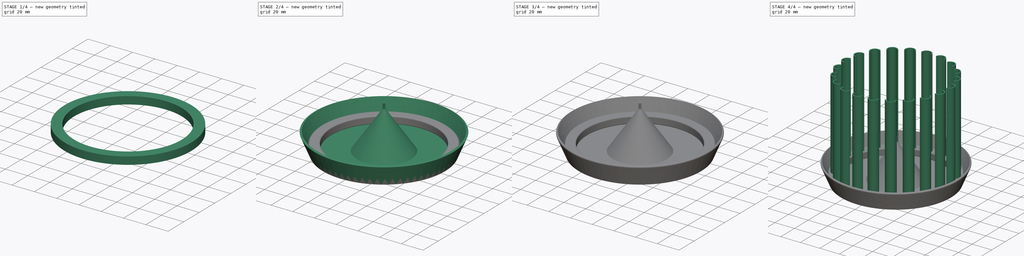
[diagram: build sequence overview — one tinted view per stage of 4, left to right]
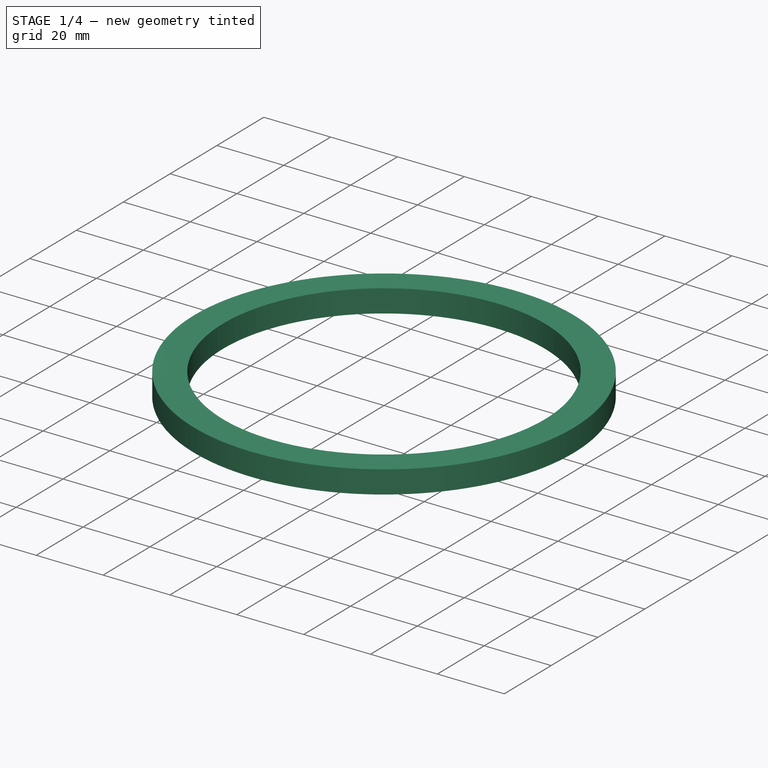
[diagram: stage 1 of 4 — iso view after this stage's code; geometry added in this stage tinted green]
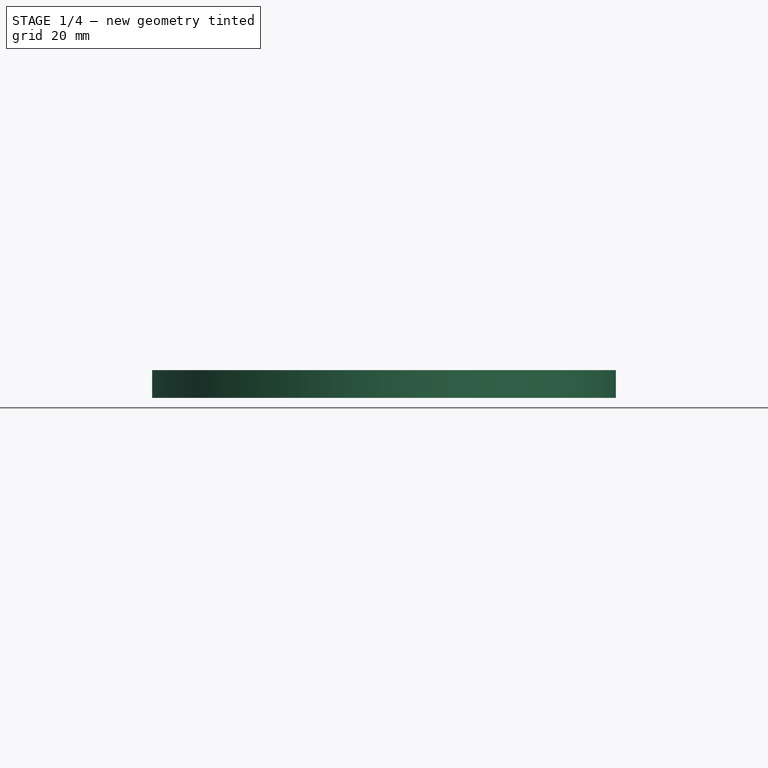
[diagram: stage 1 of 4 — front view after this stage's code; geometry added in this stage tinted green]
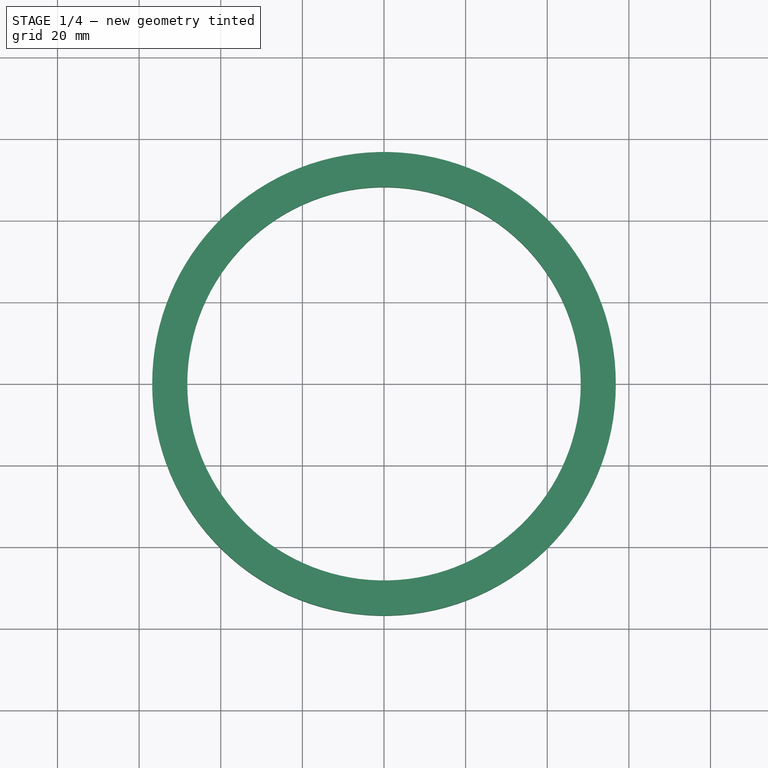
[diagram: stage 1 of 4 — top view after this stage's code; geometry added in this stage tinted green]
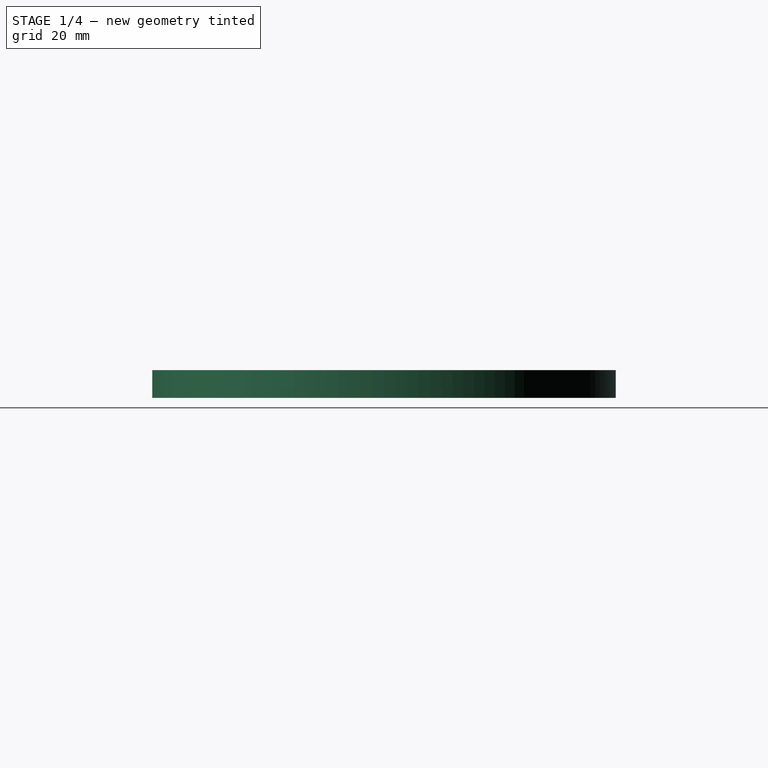
[diagram: stage 1 of 4 — right view after this stage's code; geometry added in this stage tinted green]
FCSTD DOCUMENT  (FreeCAD 0.18R16110 (Git))
Label: orchidplanter_FC018
License: All rights reserved
LicenseURL: http://en.wikipedia.org/wiki/All_rights_reserved
objects: Sketcher::SketchObject×7, PartDesign::Pad×5, PartDesign::Body×4, PartDesign::PolarPattern×4, PartDesign::Fillet×2, Spreadsheet::Sheet×1, PartDesign::Revolution×1, PartDesign::Pocket×1
note: 31 computed .brp shape members not serialized (recipe doc carries the construction recipe); baked Part::Feature solids carry a one-line shape summary decoded from their .brp

FEATURE [PartDesign::Body] Body002  label="bottom"
  Group = -> [Sketch002,Revolution,Sketch003,Pad002,Sketch004,Pad003,PolarPattern001,PolarPattern002,Fillet]
  Origin = -> Origin002
  Tip = -> Fillet
FEATURE [Sketcher::SketchObject] Sketch005
  MapMode = 5
  Support = -> [XY_Plane003]
  expr: Constraints[3] = Parameters.Diameter / 2 - 5 - Parameters.Thickness
  expr: Constraints[1] = Parameters.Diameter / 2 + Parameters.Thickness
  sketch-geometry (2):
    g0: Circle CenterX=0 CenterY=0 CenterZ=0 NormalX=0 NormalY=0 NormalZ=1 AngleXU=0 Radius=56.8
    g1: Circle CenterX=0 CenterY=0 CenterZ=0 NormalX=0 NormalY=0 NormalZ=1 AngleXU=0 Radius=48.2
  constraints (4):
    c: Coincident(g-1,g0)
    c: Radius(g0) = 56.8
    c: Coincident(g1,g0)
    c: Radius(g1) = 48.2
FEATURE [PartDesign::Pad] Pad004
  Length = 6.8
  Length2 = 100
  Profile = -> Sketch005
  Type = 0
  expr: Length = 5 + Parameters.Thickness
FEATURE [Sketcher::SketchObject] Sketch006
  MapMode = 5
  Placement = pos=(0,0,0) rot=(1,0,0;3.14159rad)
  Support = -> [Pad004]
  expr: Constraints[16] = Parameters.Diameter / 2 - 5
  sketch-geometry (5):
    g0: ArcOfCircle CenterX=-50 CenterY=0 CenterZ=0 NormalX=0 NormalY=0 NormalZ=1 AngleXU=0 Radius=5.05 StartAngle=1.5708 EndAngle=4.71239
    g1: ArcOfCircle CenterX=-50 CenterY=0 CenterZ=0 NormalX=0 NormalY=0 NormalZ=1 AngleXU=0 Radius=3.95 StartAngle=1.5708 EndAngle=4.71239
    g2: LineSegment [constr] StartX=-50 StartY=-5.05 StartZ=0 EndX=-50 EndY=5.05 EndZ=0
    g3: ArcOfCircle CenterX=-50 CenterY=4.5 CenterZ=0 NormalX=0 NormalY=0 NormalZ=1 AngleXU=0 Radius=0.55 StartAngle=4.71239 EndAngle=7.85398
    g4: ArcOfCircle CenterX=-50 CenterY=-4.5 CenterZ=0 NormalX=0 NormalY=0 NormalZ=1 AngleXU=0 Radius=0.55 StartAngle=4.71239 EndAngle=7.85398
  constraints (17):
    c: Coincident(g2,g0)
    c: Coincident(g2,g0)
    c: PointOnObject(g0,g2)
    c: Vertical(g2)
    c: Coincident(g1,g0)
    c: PointOnObject(g1,g2)
    c: PointOnObject(g1,g2)
    c: Coincident(g3,g0)
    c: Coincident(g3,g1)
    c: PointOnObject(g3,g2)
    c: Coincident(g4,g1)
    c: Coincident(g4,g0)
    c: PointOnObject(g4,g2)
    c: Radius(g1) = 3.95
    c: Radius(g0) = 5.05
    c: PointOnObject(g0,g-1)
    c: DistanceX(g0,g-1) = 50
FEATURE [PartDesign::Pocket] Pocket
  BaseFeature = -> Pad004
  Length = 5
  Length2 = 100
  Profile = -> Sketch006
  Type = 0
FEATURE [PartDesign::PolarPattern] PolarPattern003
  Angle = 360
  Axis = -> Sketch006 [N_Axis]
  BaseFeature = -> Pocket
  Occurrences = 21
  Originals = -> [Pocket]
  expr: Occurrences = Parameters.BarCount
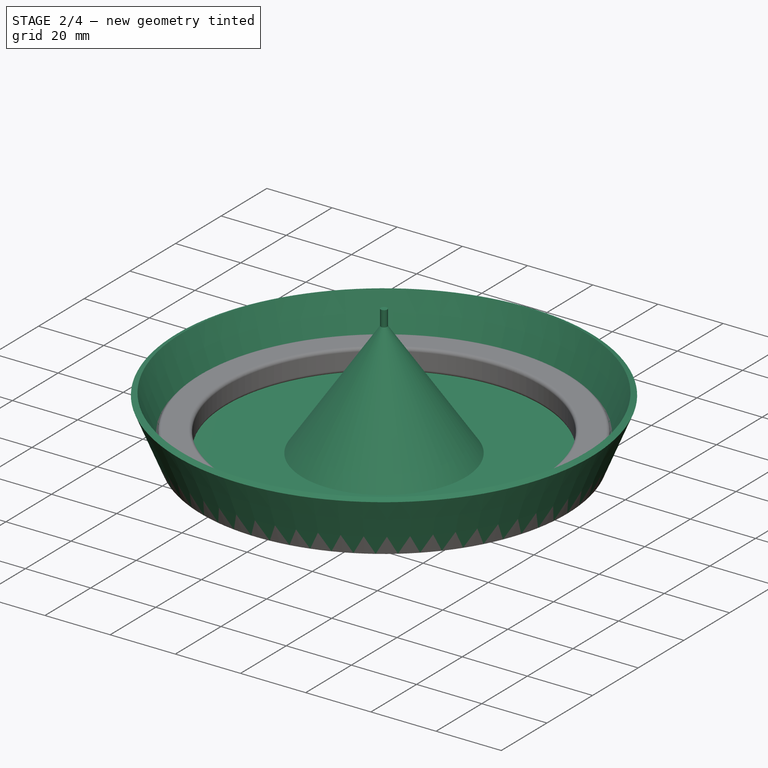
[diagram: stage 2 of 4 — iso view after this stage's code; geometry added in this stage tinted green]
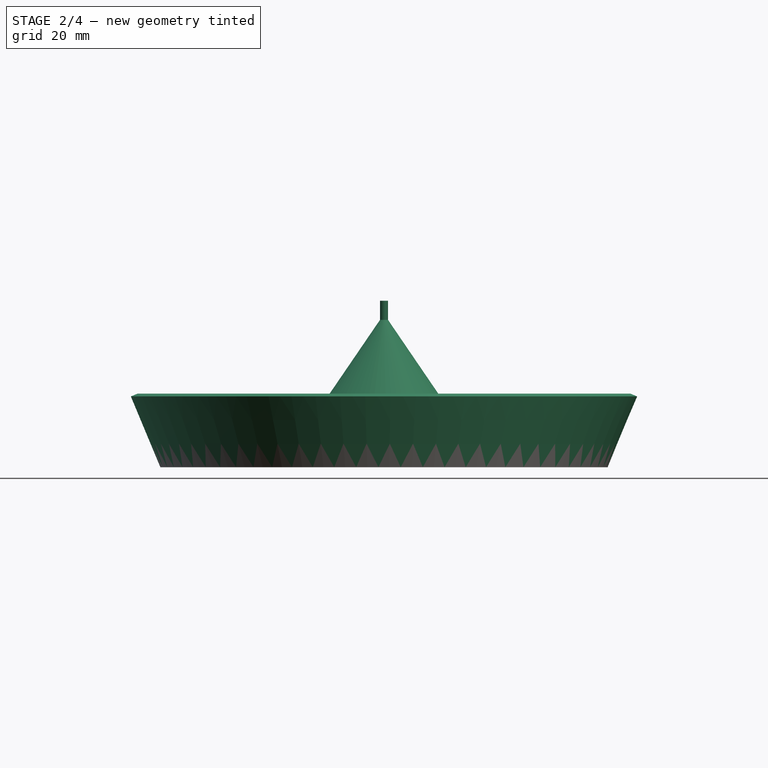
[diagram: stage 2 of 4 — front view after this stage's code; geometry added in this stage tinted green]
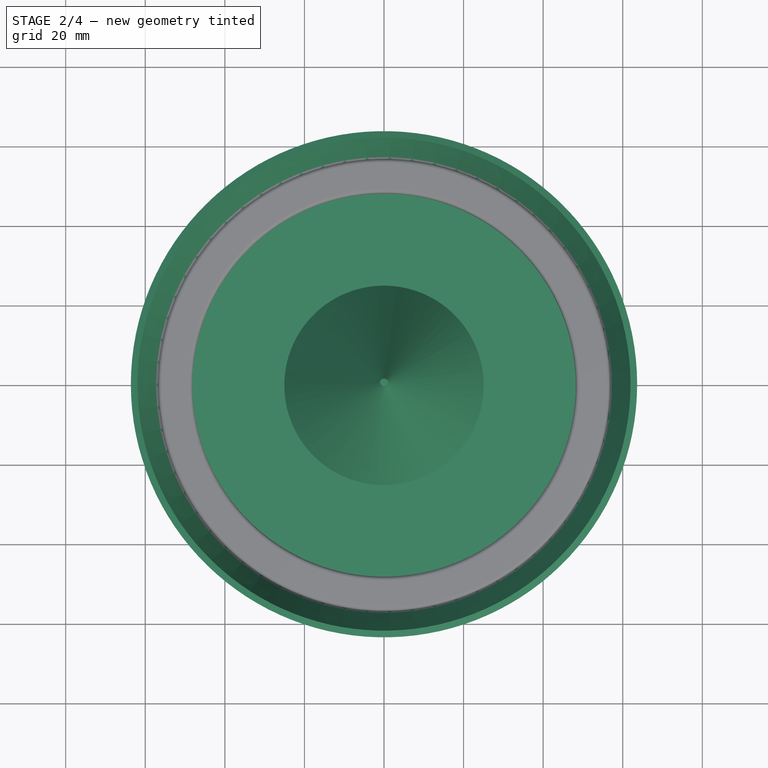
[diagram: stage 2 of 4 — top view after this stage's code; geometry added in this stage tinted green]
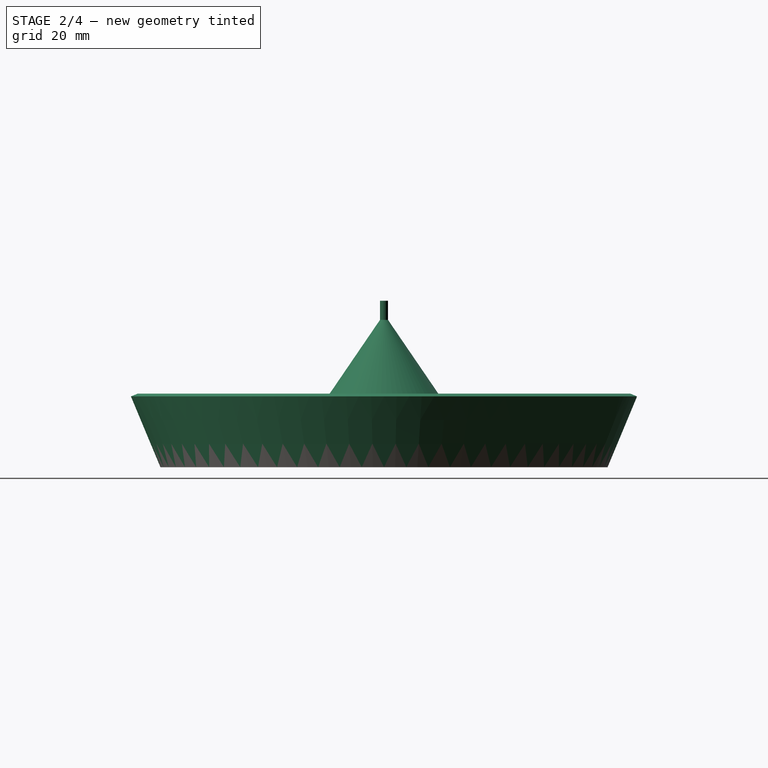
[diagram: stage 2 of 4 — right view after this stage's code; geometry added in this stage tinted green]
FEATURE [PartDesign::Body] Body001  label="breathwall"
  Group = -> [Sketch,Pad,Sketch001,Pad001,PolarPattern]
  Origin = -> Origin001
  Tip = -> PolarPattern
FEATURE [Sketcher::SketchObject] Sketch002
  MapMode = 5
  Placement = pos=(0,0,0) rot=(1,0,0;1.5708rad)
  Support = -> [XZ_Plane002]
  expr: Constraints.Thickness = Parameters.Thickness
  expr: Constraints[15] = Parameters.Thickness
  expr: Constraints[16] = Parameters.Thickness
  expr: Constraints[8] = Parameters.Diameter / 2
  sketch-geometry (10):
    g0: LineSegment StartX=-61.9594 StartY=16.6927 StartZ=0 EndX=-55 EndY=0 EndZ=0
    g1: LineSegment StartX=-55 StartY=0 StartZ=0 EndX=-25.055 EndY=0 EndZ=0
    g2: LineSegment StartX=-25.055 StartY=0 StartZ=0 EndX=-1 EndY=35.2533 EndZ=0
    g3: LineSegment StartX=0 StartY=33.5253 StartZ=0 EndX=-24.1041 EndY=-1.8 EndZ=0
    g4: LineSegment StartX=-24.1041 StartY=-1.8 StartZ=0 EndX=-56.1997 EndY=-1.8 EndZ=0
    g5: LineSegment StartX=-56.1997 StartY=-1.8 StartZ=0 EndX=-63.6208 EndY=16 EndZ=0
    g6: LineSegment StartX=-63.6208 StartY=16 StartZ=0 EndX=-61.9594 EndY=16.6927 EndZ=0
    g7: LineSegment StartX=-1 StartY=40.0472 StartZ=0 EndX=-1 EndY=35.2533 EndZ=0
    g8: LineSegment StartX=-1 StartY=40.0472 StartZ=0 EndX=0 EndY=40.0472 EndZ=0
    g9: LineSegment StartX=0 StartY=40.0472 StartZ=0 EndX=0 EndY=33.5253 EndZ=0
  constraints (26):
    c: PointOnObject(g0,g-1)
    c: Coincident(g1,g0)
    c: Horizontal(g1)
    c: Coincident(g2,g1)
    c: PointOnObject(g3,g-2)
    c: Horizontal(g4)
    c: Coincident(g6,g5)
    c: Coincident(g6,g0)
    c: DistanceX(g0,g-1) = 55
    c: Parallel(g0,g5)
    c: Parallel(g3,g2)
    c: Perpendicular(g5,g6)
    c: Distance(g6) = 1.8  'Thickness'
    c: Coincident(g4,g5)
    c: Coincident(g3,g4)
    c: DistanceY(g4,g0) = 1.8
    c: Distance(g3,g2) = 1.8
    c: Vertical(g7)
    c: Coincident(g8,g7)
    c: Horizontal(g8)
    c: Vertical(g9)
    c: Coincident(g7,g2)
    c: DistanceX(g8,g8) = 1
    c: Coincident(g9,g3)
    c: Coincident(g9,g8)
    c: DistanceY(g-1,g5) = 16
FEATURE [PartDesign::Revolution] Revolution
  Angle = 360
  Axis = (0,-2e-16,1)
  Base = (0,0,0)
  Placement = pos=(0,0,0) rot=(1,0,0;1.5708rad)
  Profile = -> Sketch002
  ReferenceAxis = -> Sketch002 [V_Axis]
FEATURE [Sketcher::SketchObject] Sketch003
  ExternalGeometry = -> [Revolution]
  MapMode = 5
  Placement = pos=(0,0,0) rot=(0,0,1;3.14159rad)
  Support = -> [Revolution]
  expr: Constraints[10] = Parameters.Diameter / 2
  expr: Constraints[0] = Parameters.Diameter / 2 + Parameters.Thickness
  sketch-geometry (4):
    g0: ArcOfCircle CenterX=0 CenterY=0 CenterZ=0 NormalX=0 NormalY=0 NormalZ=1 AngleXU=0 Radius=55 StartAngle=3.09612 EndAngle=3.18706
    g1: ArcOfCircle CenterX=0 CenterY=0 CenterZ=0 NormalX=0 NormalY=0 NormalZ=1 AngleXU=0 Radius=56.8 StartAngle=3.09612 EndAngle=3.18706
    g2: LineSegment StartX=-54.9432 StartY=2.5 StartZ=0 EndX=-56.7413 EndY=2.58182 EndZ=0
    g3: LineSegment StartX=-54.9432 StartY=-2.5 StartZ=0 EndX=-56.7413 EndY=-2.58182 EndZ=0
  constraints (11):
    c: Radius(g1) = 56.8
    c: Perpendicular(g1,g2)
    c: Coincident(g0,g-1)
    c: DistanceY(g0,g0) = 5
    c: Symmetric(g0,g0,g-1)
    c: Perpendicular(g3,g1) = 1.5708
    c: Coincident(g2,g1)
    c: Coincident(g0,g2)
    c: Coincident(g0,g3)
    c: Coincident(g1,g0)
    c: Radius(g0) = 55
FEATURE [PartDesign::Pad] Pad002
  BaseFeature = -> Revolution
  Length = 2.8
  Length2 = 100
  Placement = pos=(0,0,0) rot=(1,0,0;1.5708rad)
  Profile = -> Sketch003
  Type = 0
  expr: Length = Parameters.Thickness + 1
FEATURE [PartDesign::Fillet] Fillet001
  Base = -> PolarPattern003 [Face1,Face8]
  BaseFeature = -> PolarPattern003
  Radius = 1
FEATURE [PartDesign::Body] Body003  label="holder"
  Group = -> [Sketch005,Pad004,Sketch006,Pocket,PolarPattern003,Fillet001]
  Origin = -> Origin003
  Placement = pos=(0,0,91) rot=(0,0,1;0rad)
  Tip = -> Fillet001
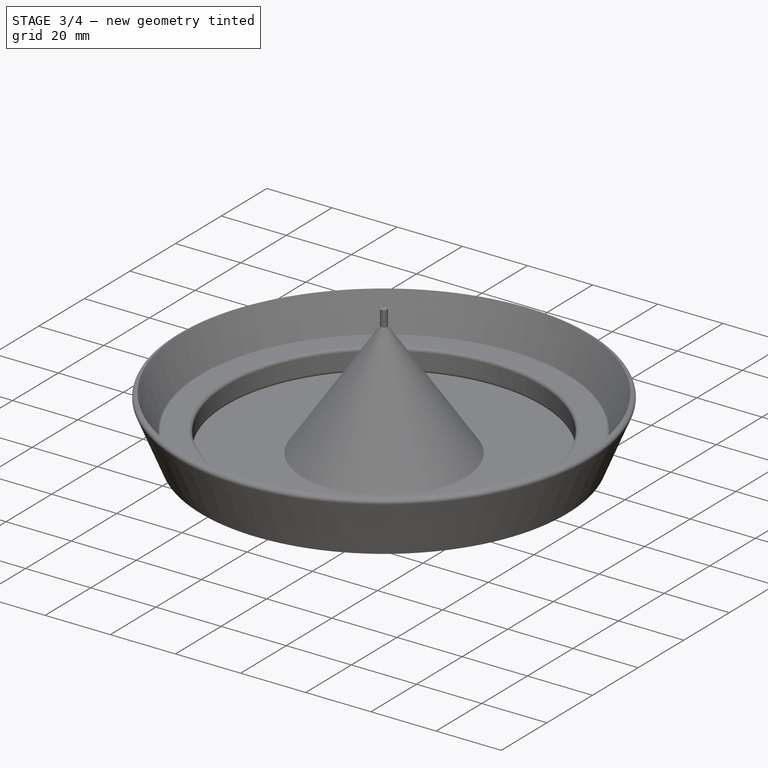
[diagram: stage 3 of 4 — iso view after this stage's code; geometry added in this stage tinted green]
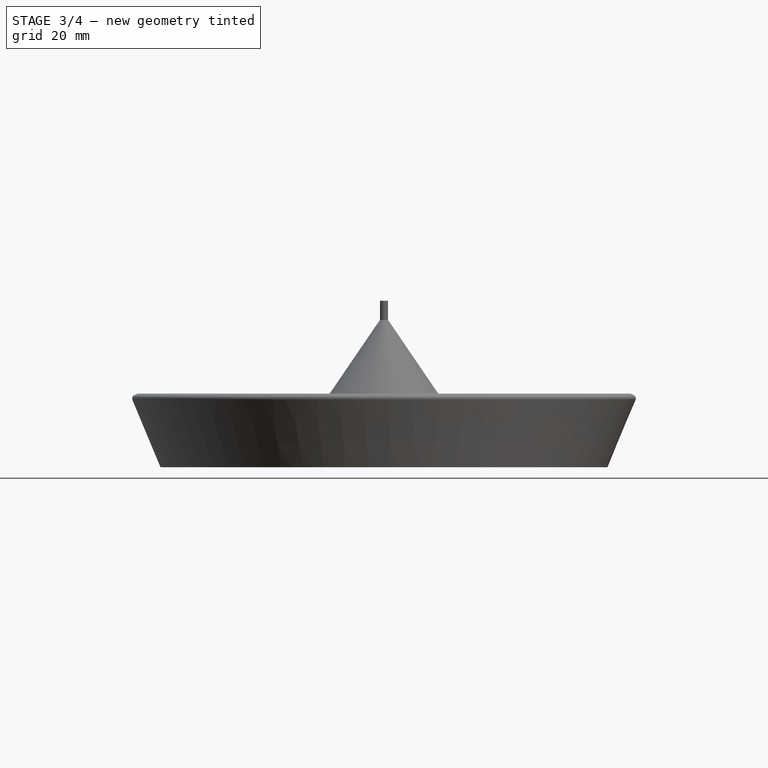
[diagram: stage 3 of 4 — front view after this stage's code; geometry added in this stage tinted green]
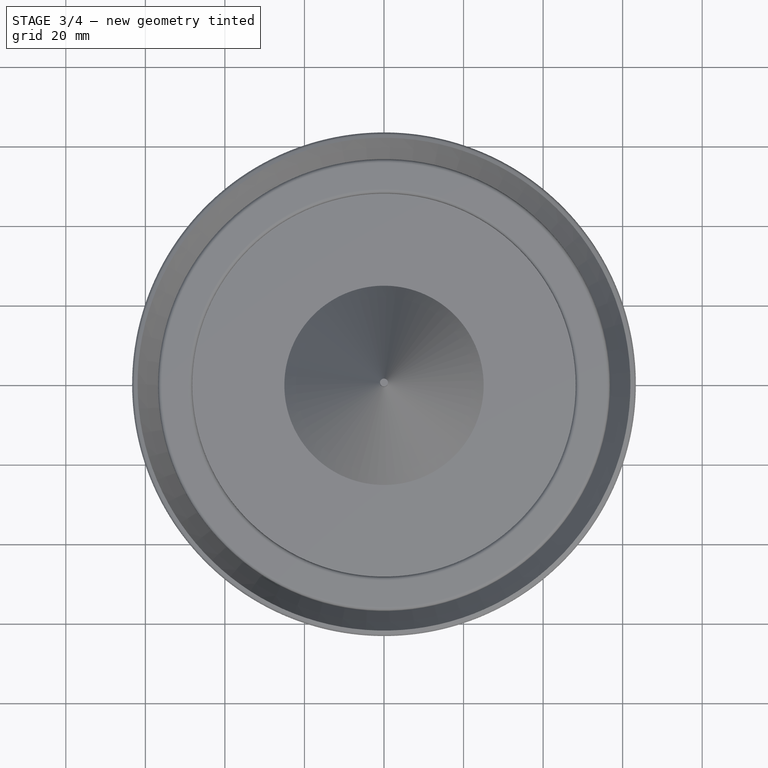
[diagram: stage 3 of 4 — top view after this stage's code; geometry added in this stage tinted green]
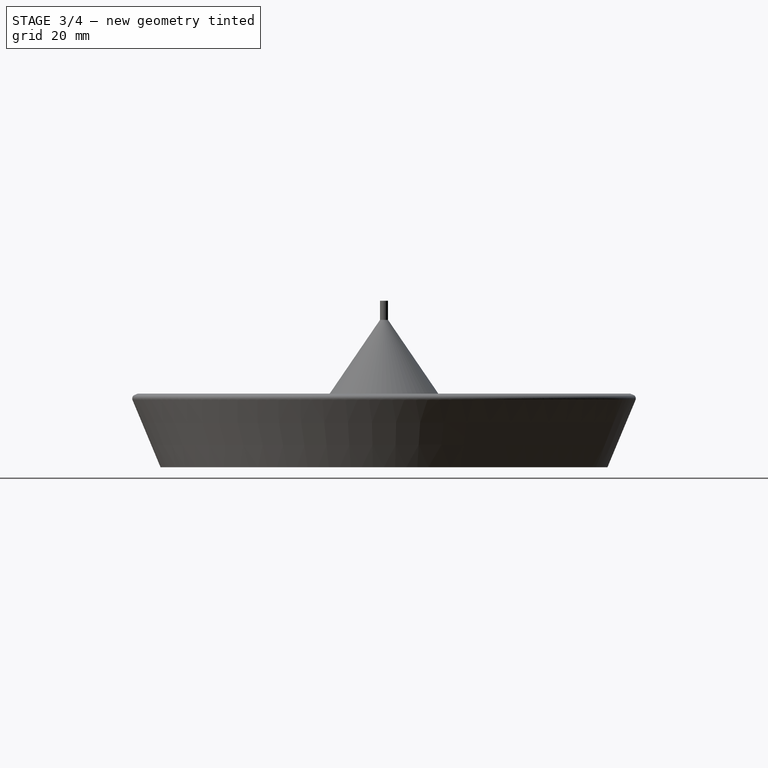
[diagram: stage 3 of 4 — right view after this stage's code; geometry added in this stage tinted green]
FEATURE [Sketcher::SketchObject] Sketch004
  MapMode = 5
  Placement = pos=(0,-6e-16,2.8) rot=(0,0,1;3.14159rad)
  Support = -> [Pad002]
  expr: Constraints[1] = Parameters.Diameter / 2 + Parameters.Thickness
  sketch-geometry (4):
    g0: ArcOfCircle CenterX=0 CenterY=0 CenterZ=0 NormalX=0 NormalY=0 NormalZ=1 AngleXU=0 Radius=56.8 StartAngle=3.09756 EndAngle=3.18562
    g1: LineSegment StartX=-56.745 StartY=2.5 StartZ=0 EndX=-52.245 EndY=2.5 EndZ=0
    g2: LineSegment StartX=-52.245 StartY=2.5 StartZ=0 EndX=-52.245 EndY=-2.5 EndZ=0
    g3: LineSegment StartX=-52.245 StartY=-2.5 StartZ=0 EndX=-56.745 EndY=-2.5 EndZ=0
  constraints (12):
    c: Coincident(g0,g-1)
    c: Radius(g0) = 56.8
    c: Coincident(g1,g0)
    c: Horizontal(g1)
    c: Vertical(g2)
    c: Coincident(g3,g2)
    c: Coincident(g3,g0)
    c: Horizontal(g3)
    c: Symmetric(g0,g0,g-1)
    c: Coincident(g2,g1)
    c: Distance(g0,g0) = 5
    c: DistanceX(g1,g1) = 4.5
FEATURE [PartDesign::Pad] Pad003
  BaseFeature = -> Pad002
  Length = 1.8
  Length2 = 100
  Placement = pos=(0,0,0) rot=(1,0,0;1.5708rad)
  Profile = -> Sketch004
  Type = 0
  expr: Length = Parameters.Thickness
FEATURE [PartDesign::PolarPattern] PolarPattern001
  Angle = 360
  Axis = -> Z_Axis002
  BaseFeature = -> Pad003
  Occurrences = 3
  Originals = -> [Pad002]
  Placement = pos=(0,0,0) rot=(1,0,0;1.5708rad)
FEATURE [PartDesign::PolarPattern] PolarPattern002
  Angle = 360
  Axis = -> Z_Axis002
  BaseFeature = -> PolarPattern001
  Occurrences = 3
  Originals = -> [Pad003]
  Placement = pos=(0,0,0) rot=(1,0,0;1.5708rad)
FEATURE [PartDesign::Fillet] Fillet
  Base = -> PolarPattern002 [Edge45]
  BaseFeature = -> PolarPattern002
  Placement = pos=(0,0,0) rot=(1,0,0;1.5708rad)
  Radius = 1
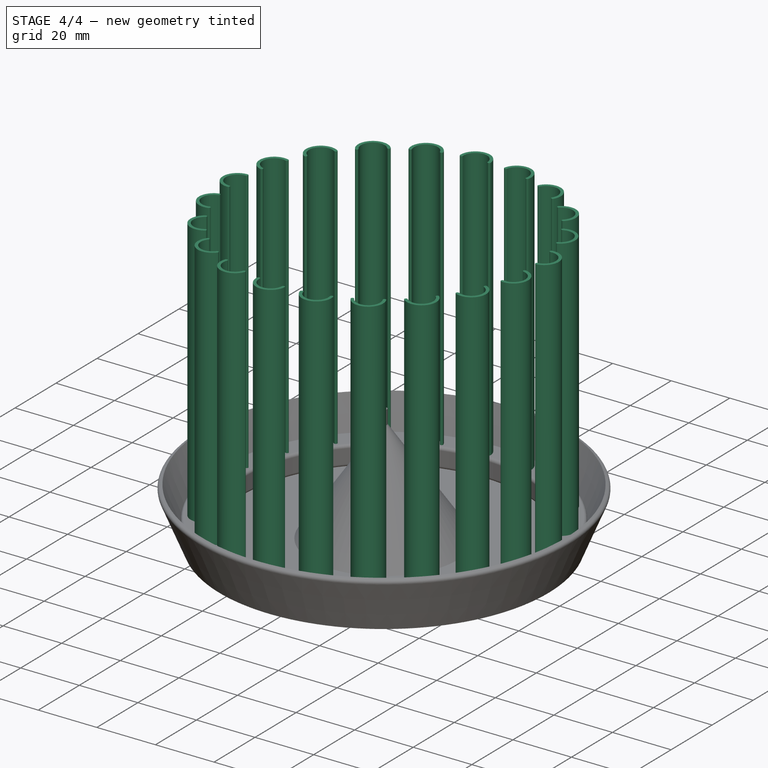
[diagram: stage 4 of 4 — iso view after this stage's code; geometry added in this stage tinted green]
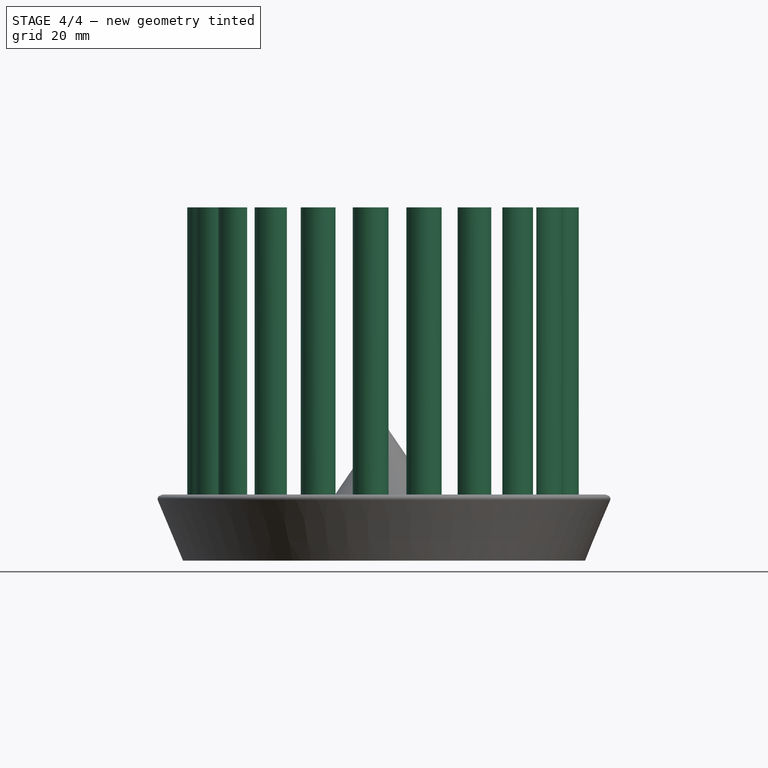
[diagram: stage 4 of 4 — front view after this stage's code; geometry added in this stage tinted green]
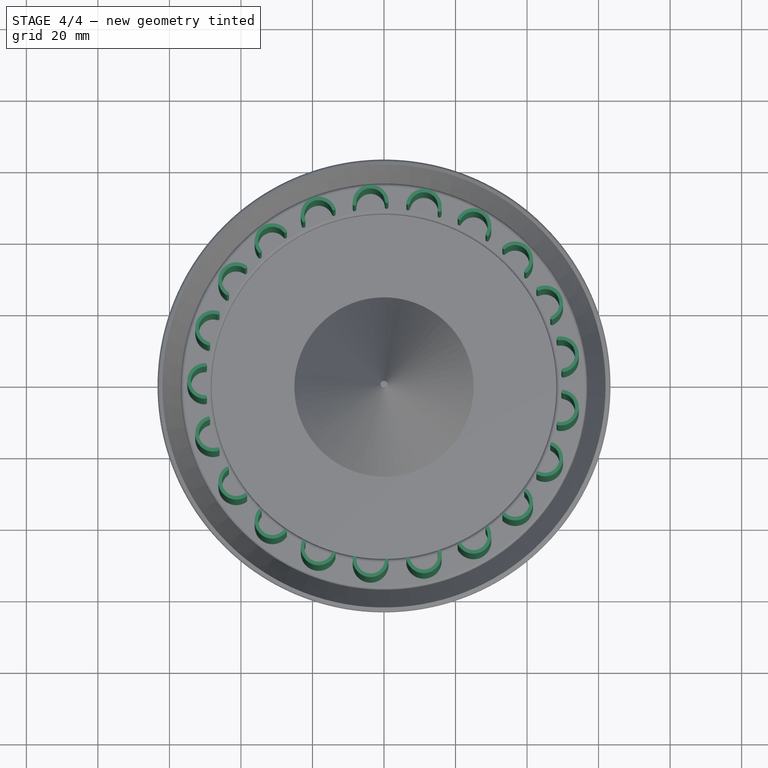
[diagram: stage 4 of 4 — top view after this stage's code; geometry added in this stage tinted green]
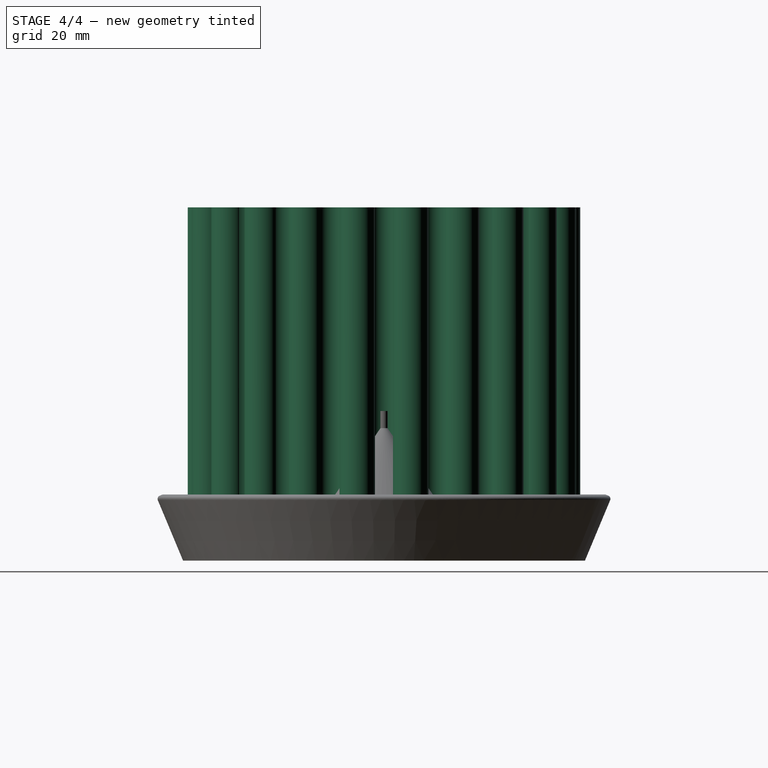
[diagram: stage 4 of 4 — right view after this stage's code; geometry added in this stage tinted green]
FEATURE [Spreadsheet::Sheet] Spreadsheet  label="Parameters"
  cells = A2=Diameter; B2(Diameter)=110; A4=Thickness; B4(Thickness)=1.8; A6=BarCount; B6(BarCount)=21; C6=Should be divisible by 3
FEATURE [PartDesign::Body] Body
  Origin = -> Origin
FEATURE [Sketcher::SketchObject] Sketch
  MapMode = 5
  Support = -> [XY_Plane001]
  expr: Constraints[3] = Parameters.Diameter / 2 - 5
  expr: Constraints[1] = Parameters.Diameter / 2
  sketch-geometry (2):
    g0: Circle CenterX=0 CenterY=0 CenterZ=0 NormalX=0 NormalY=0 NormalZ=1 AngleXU=0 Radius=55
    g1: Circle CenterX=0 CenterY=0 CenterZ=0 NormalX=0 NormalY=0 NormalZ=1 AngleXU=0 Radius=50
  constraints (4):
    c: Coincident(g0,g-1)
    c: Radius(g0) = 55
    c: Coincident(g0,g1)
    c: Radius(g1) = 50
FEATURE [PartDesign::Pad] Pad
  Length = 2
  Length2 = 100
  Profile = -> Sketch
  Type = 0
FEATURE [Sketcher::SketchObject] Sketch001
  ExternalGeometry = -> [Pad]
  MapMode = 5
  Placement = pos=(0,0,2) rot=(0,0,1;0rad)
  Support = -> [Pad]
  sketch-geometry (5):
    g0: ArcOfCircle CenterX=-50 CenterY=0 CenterZ=0 NormalX=0 NormalY=0 NormalZ=1 AngleXU=0 Radius=5 StartAngle=1.5708 EndAngle=4.71239
    g1: LineSegment [constr] StartX=-50 StartY=5 StartZ=0 EndX=-50 EndY=-5 EndZ=0
    g2: ArcOfCircle CenterX=-50 CenterY=0 CenterZ=0 NormalX=0 NormalY=0 NormalZ=1 AngleXU=0 Radius=4 StartAngle=1.5708 EndAngle=4.71239
    g3: ArcOfCircle CenterX=-50 CenterY=4.5 CenterZ=0 NormalX=0 NormalY=0 NormalZ=1 AngleXU=0 Radius=0.5 StartAngle=4.71239 EndAngle=7.85398
    g4: ArcOfCircle CenterX=-50 CenterY=-4.5 CenterZ=0 NormalX=0 NormalY=0 NormalZ=1 AngleXU=0 Radius=0.5 StartAngle=4.71239 EndAngle=7.85398
  constraints (17):
    c: PointOnObject(g0,g-1)
    c: Coincident(g1,g0)
    c: Coincident(g1,g0)
    c: Vertical(g1)
    c: PointOnObject(g0,g1)
    c: Radius(g0) = 5
    c: PointOnObject(g2,g1)
    c: PointOnObject(g2,g1)
    c: Coincident(g2,g0)
    c: Radius(g2) = 4
    c: Coincident(g3,g0)
    c: Coincident(g3,g2)
    c: PointOnObject(g3,g1)
    c: Coincident(g4,g2)
    c: Coincident(g4,g0)
    c: PointOnObject(g4,g1)
    c: PointOnObject(g0,g-3)
FEATURE [PartDesign::Pad] Pad001
  BaseFeature = -> Pad
  Length = 95
  Length2 = 100
  Profile = -> Sketch001
  Type = 0
FEATURE [PartDesign::PolarPattern] PolarPattern
  Angle = 360
  Axis = -> Sketch001 [N_Axis]
  BaseFeature = -> Pad001
  Occurrences = 21
  Originals = -> [Pad001]
  expr: Occurrences = Parameters.BarCount
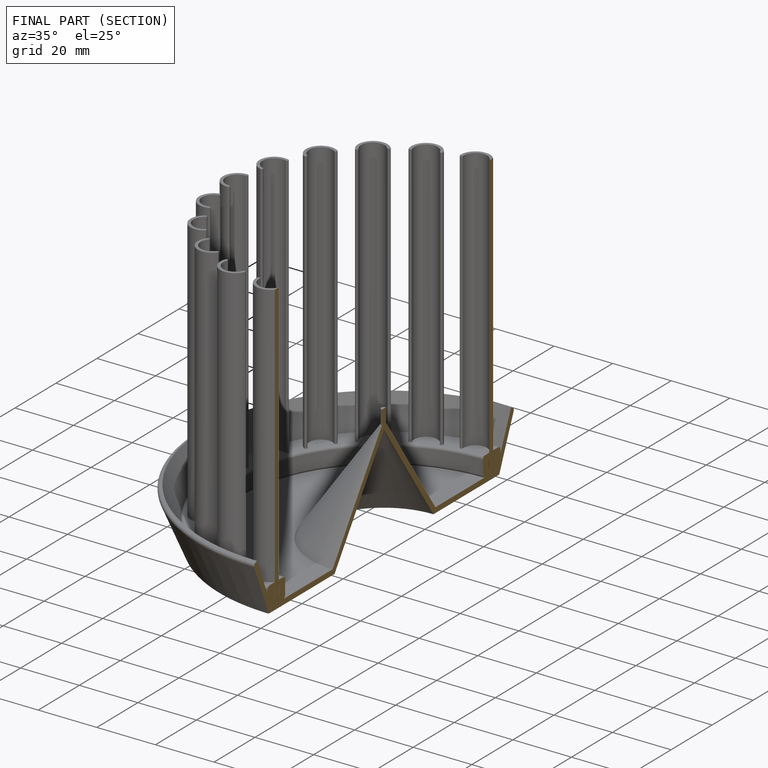
[diagram: finished part — half-section view (interior)]
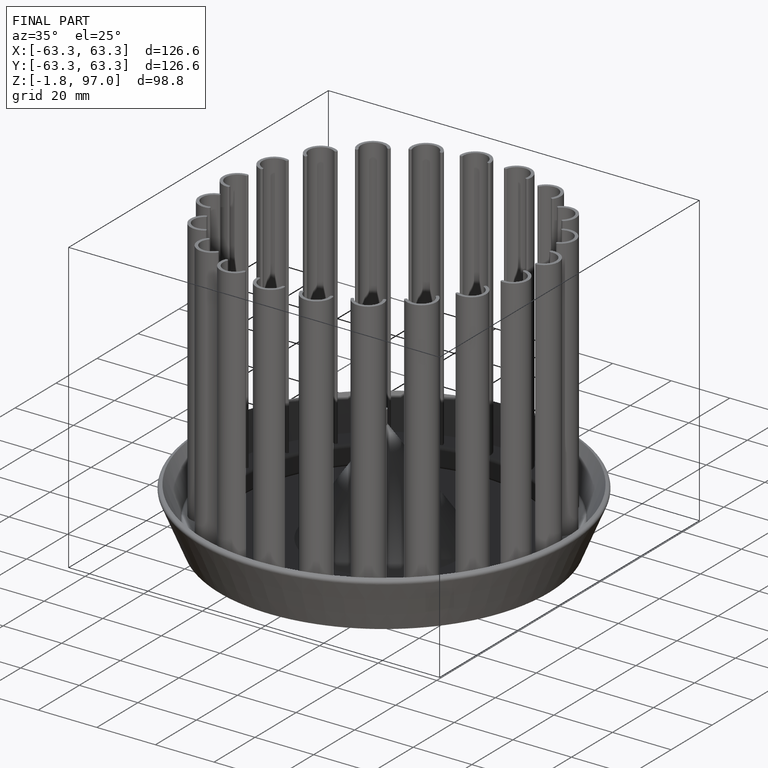
[diagram: finished part — iso view with bounding-box wireframe]
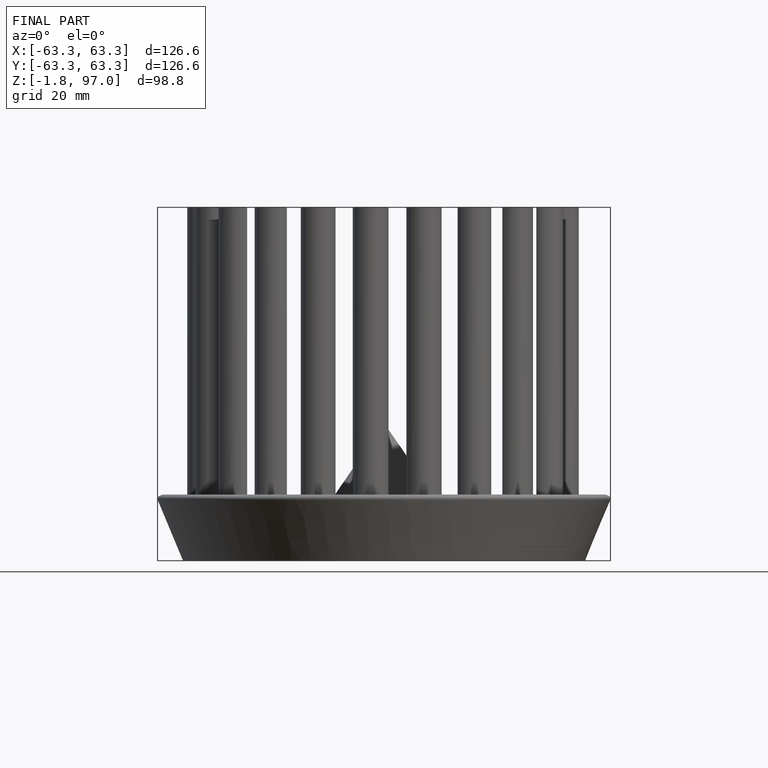
[diagram: finished part — front view with bounding-box wireframe]
